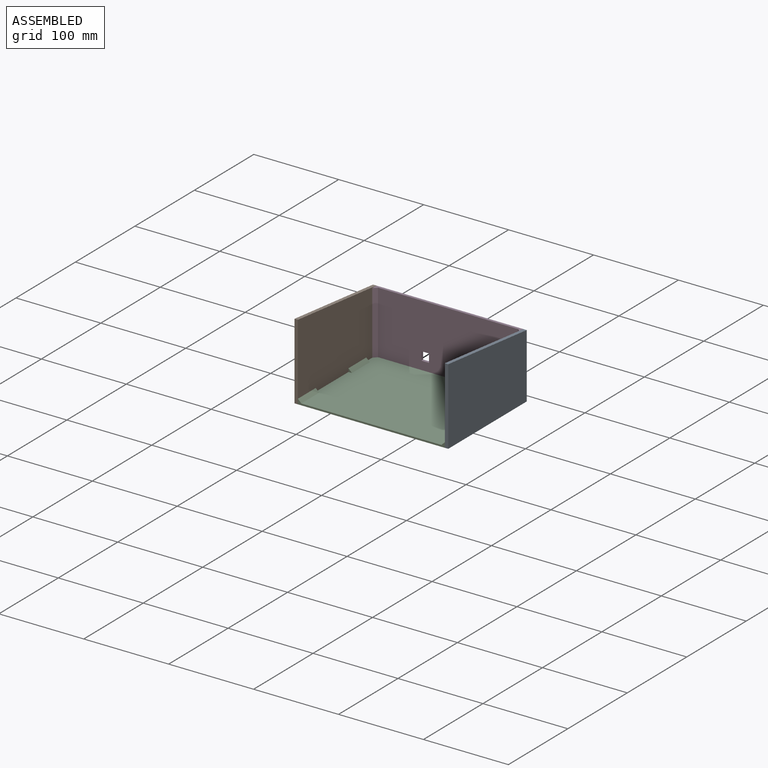
[diagram: assembled view]
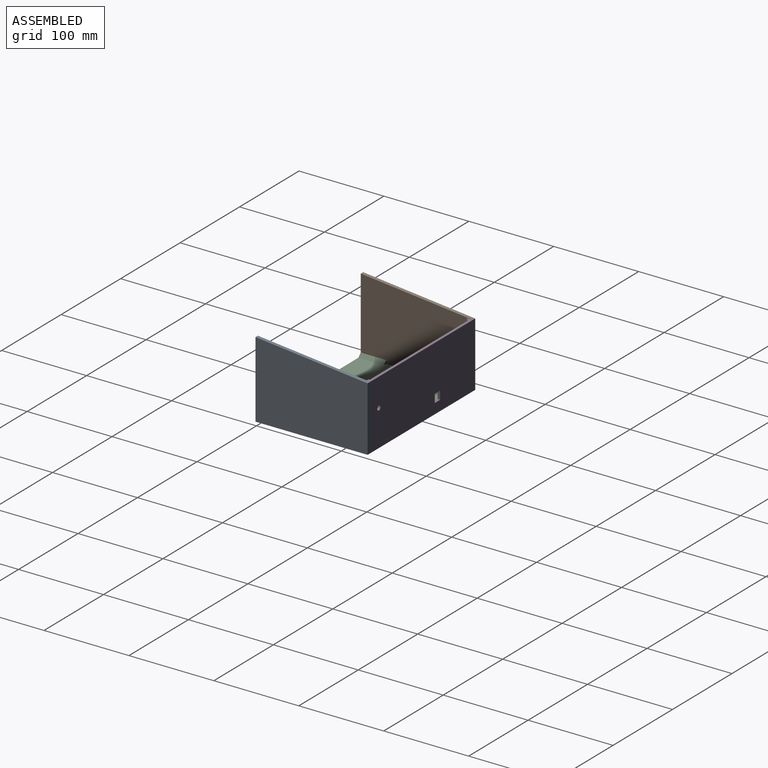
[diagram: assembled view, second angle]
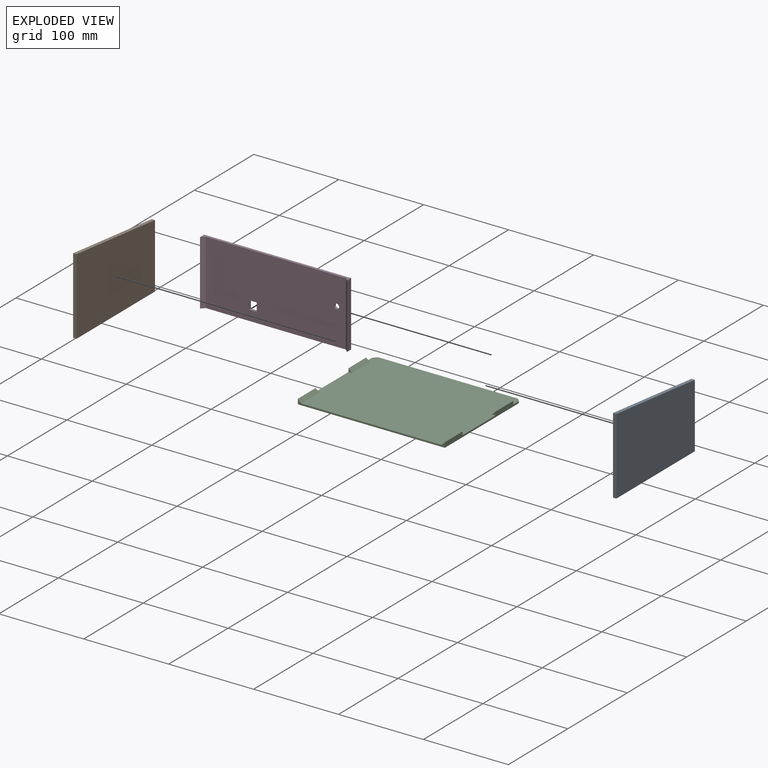
[diagram: exploded view]
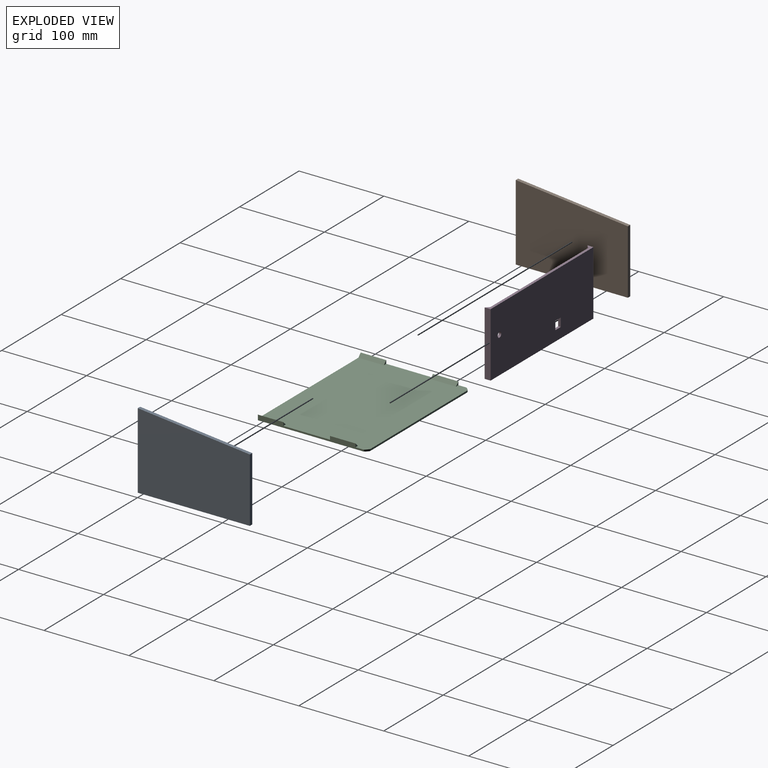
[diagram: exploded view, second angle]
ASSEMBLY  parts=4 mates=6
PART A: 6 faces, bbox 4x132x90 mm
  f0: plane 132x14mm, normal (0,0.11,0.99), area 531mm2, adj f1,f3,f4,f5
  f1: plane 90x4mm, normal (0,-1,0), area 360mm2, adj f0,f2,f4,f5
  f2: plane 132x4mm, normal (0,0,-1), area 528mm2, adj f1,f3,f4,f5
  f3: plane 76x4mm, normal (0,1,0), area 304mm2, adj f0,f2,f4,f5
  f4: plane 132x90mm, normal (1,0,0), area 10956mm2, adj f0,f1,f2,f3
  f5: plane 132x90mm, normal (-1,0,0), area 10956mm2, adj f0,f1,f2,f3
PART B: same geometry as A
PART C: 22 faces, bbox 173x129x6 mm
  f0: plane 173x129mm, normal (0,0,1), area 21819.4mm2, adj f1,f2,f3,f4,f5,f6,f8,f9
  f1: plane 123.66x6mm, normal (-1,0,0), area 487.3mm2, adj f0,f2,f7,f9,f12,f13,f16,f17
  f2: plane 173x6mm, normal (0,-1,0), area 362mm2, adj f0,f1,f3,f7,f12,f14
  f3: plane 123.66x6mm, normal (1,0,0), area 487.3mm2, adj f0,f2,f7,f10,f14,f15,f19,f20
  f4: plane 2.34x2.34mm, normal (0.71,0.71,0), area 6.6mm2, adj f0,f7,f10,f11
  f5: plane 162.31x2mm, normal (0,1,0), area 324.6mm2, adj f0,f7,f8,f11
  f6: plane 2.34x2.34mm, normal (-0.71,0.71,0), area 6.6mm2, adj f0,f7,f8,f9
  f7: plane 173x129mm, normal (0,0,-1), area 22299.4mm2, adj f1,f2,f3,f4,f5,f6,f8,f9
  f8: cylinder r=3mm len=2.12mm, axis (0,0,-1), area 4.7mm2, adj f0,f5,f6,f7
  f9: cylinder r=3mm len=2.12mm, axis (0,0,-1), area 4.7mm2, adj f0,f1,f6,f7
  f10: cylinder r=3mm len=2.12mm, axis (0,0,-1), area 4.7mm2, adj f0,f3,f4,f7
  f11: cylinder r=3mm len=2.12mm, axis (0,0,1), area 4.7mm2, adj f0,f4,f5,f7
  f12: plane 30x4mm, normal (0.71,0,0.71), area 169.7mm2, adj f0,f1,f2,f13
  f13: plane 4x4mm, normal (0,1,0), area 8mm2, adj f0,f1,f12
  f14: plane 30x4mm, normal (-0.71,0,0.71), area 169.7mm2, adj f0,f2,f3,f15
  f15: plane 4x4mm, normal (0,1,0), area 8mm2, adj f0,f3,f14
  f16: plane 30x4mm, normal (0.71,0,0.71), area 169.7mm2, adj f0,f1,f17,f18
  f17: plane 4x4mm, normal (0,1,0), area 8mm2, adj f0,f1,f16
  f18: plane 4x4mm, normal (0,-1,0), area 8mm2, adj f0,f1,f16
  f19: plane 30x4mm, normal (-0.71,0,0.71), area 169.7mm2, adj f0,f3,f20,f21
  f20: plane 4x4mm, normal (0,1,0), area 8mm2, adj f0,f3,f19
  f21: plane 4x4mm, normal (0,-1,0), area 8mm2, adj f0,f3,f19
PART D: 13 faces, bbox 173x7x76 mm
  f0: plane 165x76mm, normal (0,-1,0), area 12421.7mm2, adj f1,f2,f3,f5,f7,f8,f9,f11
  f1: plane 10x3mm, normal (1,0,0), area 30mm2, adj f0,f2,f7,f10
  f2: plane 9x3mm, normal (0,0,-1), area 27mm2, adj f0,f1,f3,f10
  f3: plane 10x3mm, normal (-1,0,0), area 30mm2, adj f0,f2,f7,f10
  f4: plane 76x7mm, normal (-1,0,0), area 532mm2, adj f5,f8,f10,f11
  f5: plane 173x7mm, normal (0,0,-1), area 535mm2, adj f0,f4,f6,f10,f11,f12
  f6: plane 76x7mm, normal (1,0,0), area 532mm2, adj f5,f8,f10,f12
  f7: plane 9x3mm, normal (0,0,1), area 27mm2, adj f0,f1,f3,f10
  f8: plane 173x7mm, normal (0,0,1), area 535mm2, adj f0,f4,f6,f10,f11,f12
  f9: cylinder r=3mm len=6mm, axis (0,1,0), area 56.5mm2, adj f0,f10
  f10: plane 173x76mm, normal (0,1,0), area 13029.7mm2, adj f1,f2,f3,f4,f5,f6,f7,f8
  f11: plane 76x4mm, normal (0.71,-0.71,0), area 429.9mm2, adj f0,f4,f5,f8
  f12: plane 76x4mm, normal (-0.71,-0.71,0), area 429.9mm2, adj f0,f5,f6,f8
PLACE A t=(-156.45,-197.74,127.74)mm
PLACE B t=(-333.45,-197.74,127.74)mm
PLACE C t=(-329.45,-197.74,127.74)mm
PLACE D t=(-329.45,-65.74,127.74)mm
MATE planar C.f3 <-> A.f5  axis (1,0,0) through (-156.45,-138.04,130.22)mm
MATE planar A.f2 <-> D.f5  axis (0,0,-1) through (-154.45,-65.74,127.74)mm
MATE planar C.f7 <-> B.f2  axis (0,0,-1) through (-242.95,-133.29,127.74)mm
MATE planar A.f5 <-> D.f6  axis (-1,0,0) through (-156.45,-133.59,169.34)mm
MATE planar A.f3 <-> D.f10  axis (0,1,0) through (-154.45,-65.74,165.74)mm
MATE planar A.f1 <-> C.f2  axis (0,-1,0) through (-154.45,-197.74,172.74)mm
